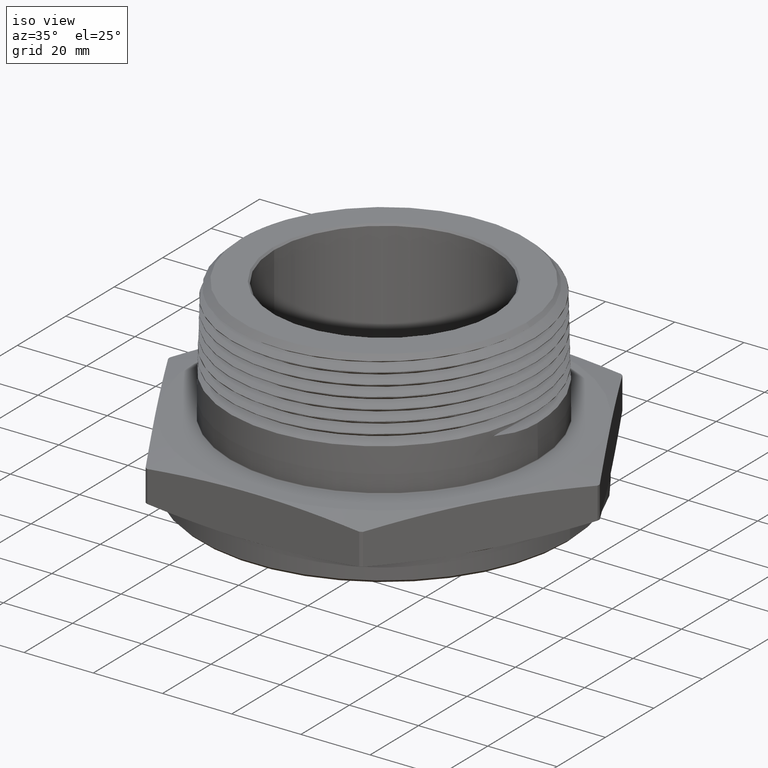
[diagram: clean part render]
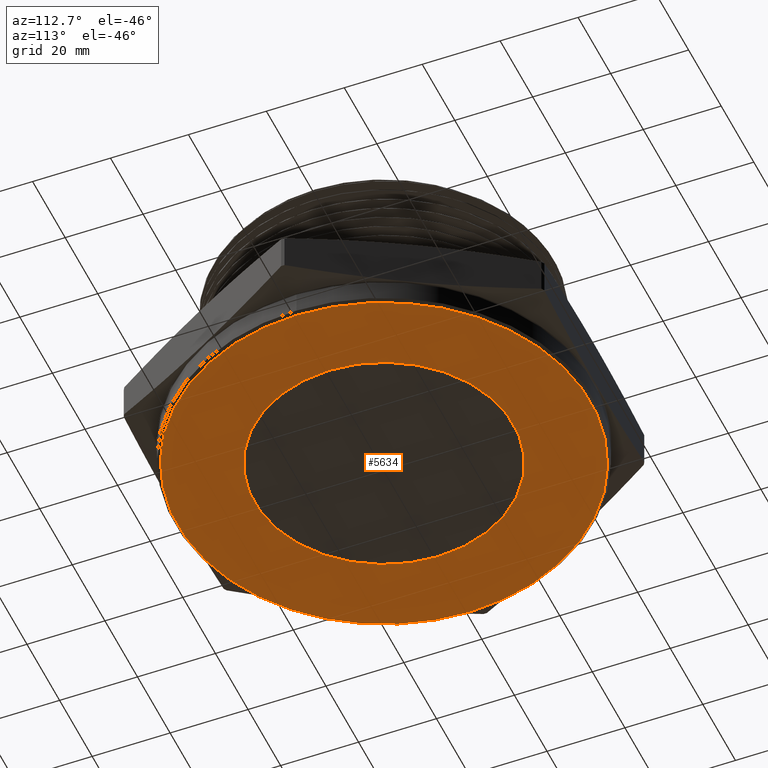
[diagram: tour spotlight — one face highlighted and labeled with its STEP entity id]
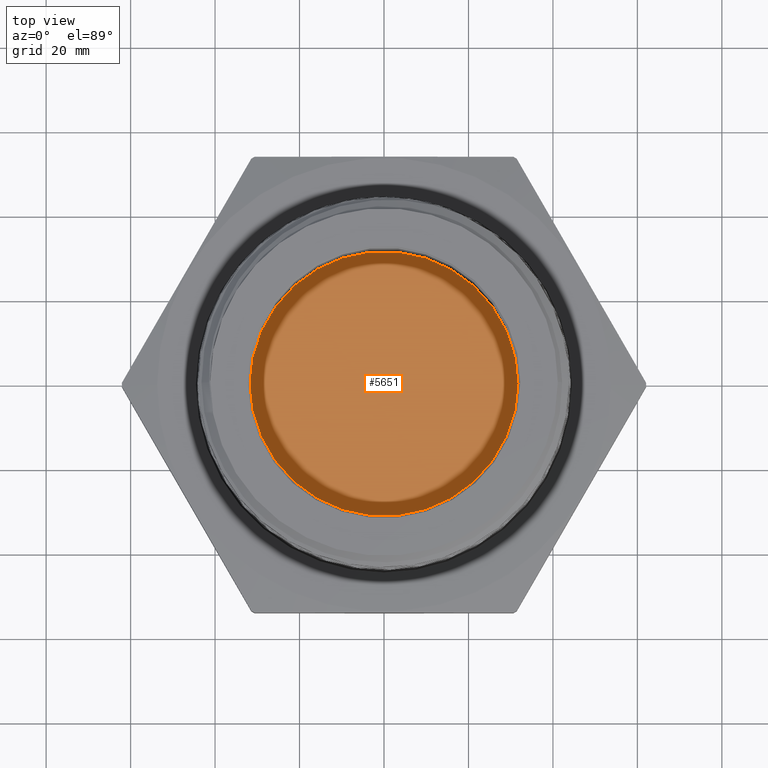
[diagram: tour spotlight — one face highlighted and labeled with its STEP entity id]
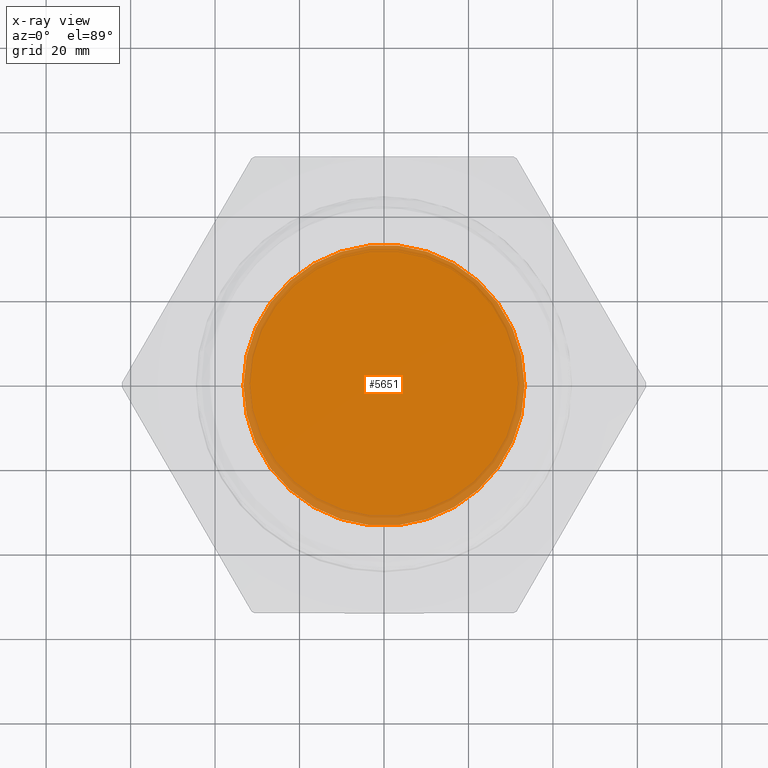
[diagram: x-ray of the same camera — body ghosted, this tour face saturated]
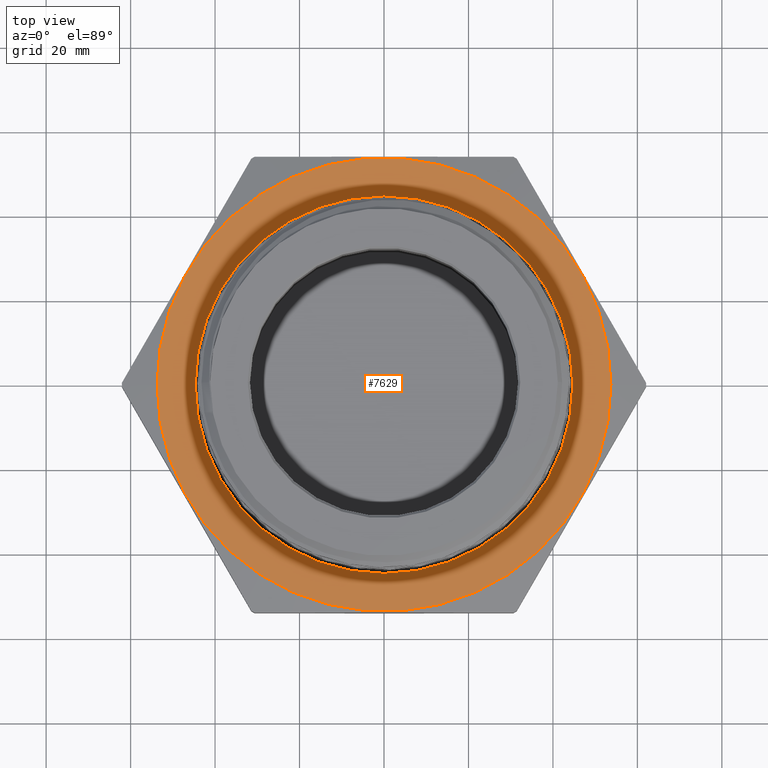
[diagram: tour spotlight — one face highlighted and labeled with its STEP entity id]
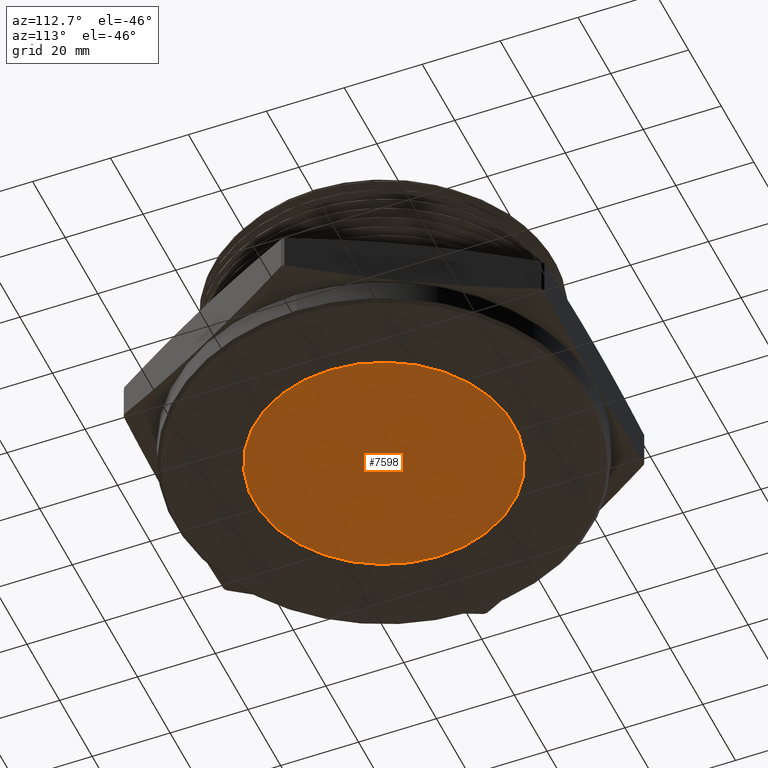
[diagram: tour spotlight — one face highlighted and labeled with its STEP entity id]
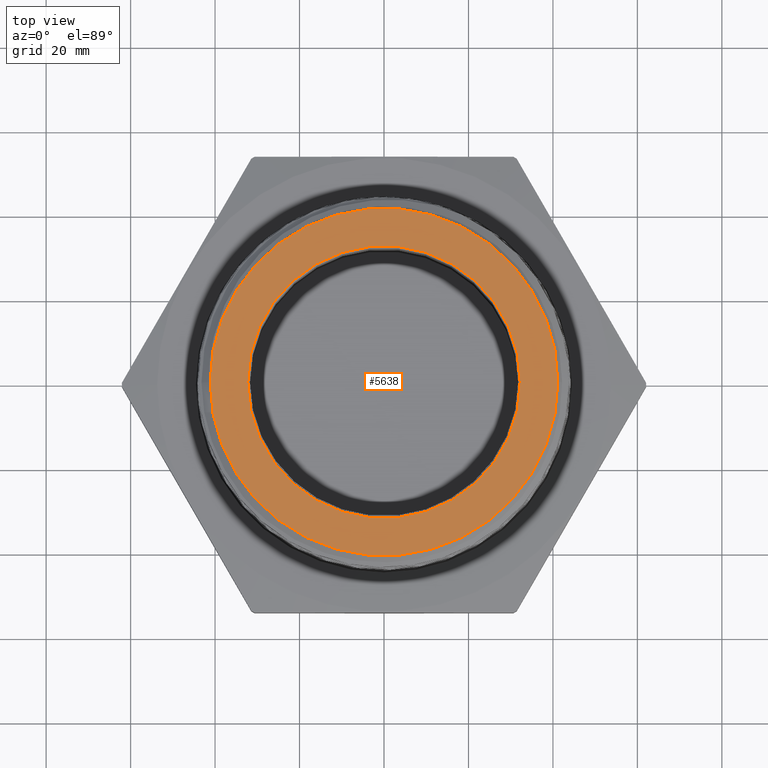
[diagram: tour spotlight — one face highlighted and labeled with its STEP entity id]
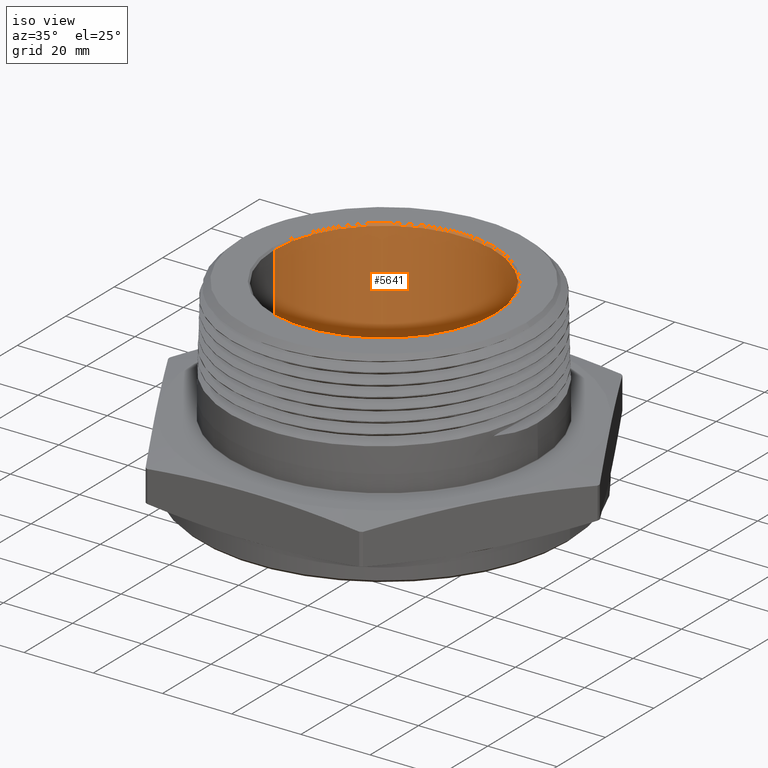
[diagram: tour spotlight — one face highlighted and labeled with its STEP entity id]
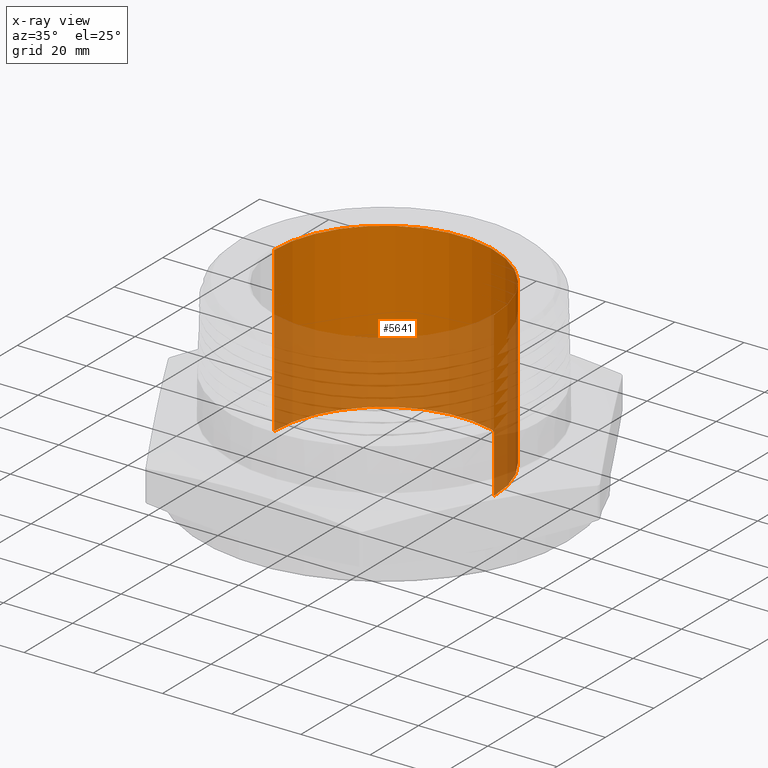
[diagram: x-ray of the same camera — body ghosted, this tour face saturated]
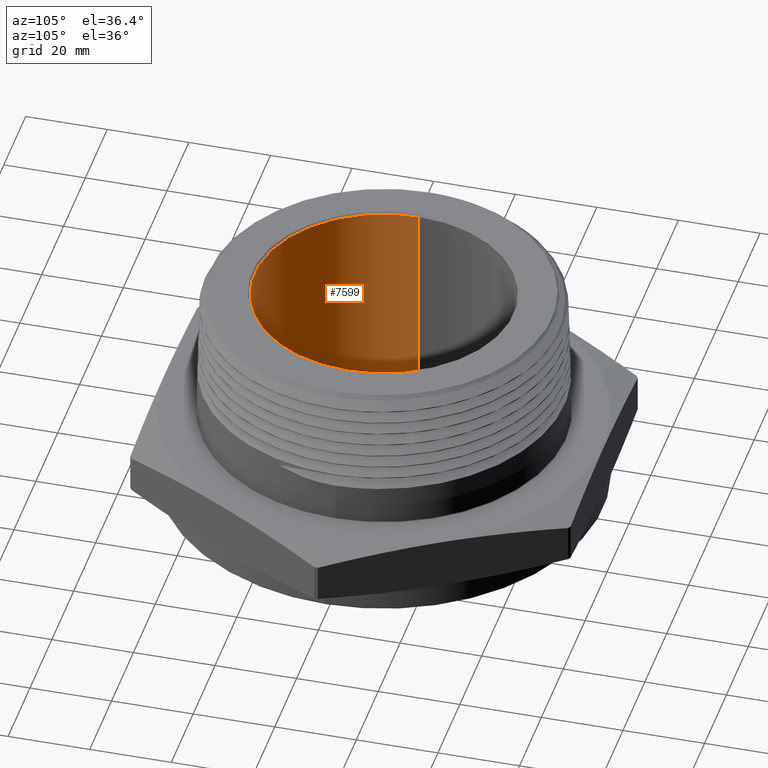
[diagram: tour spotlight — one face highlighted and labeled with its STEP entity id]
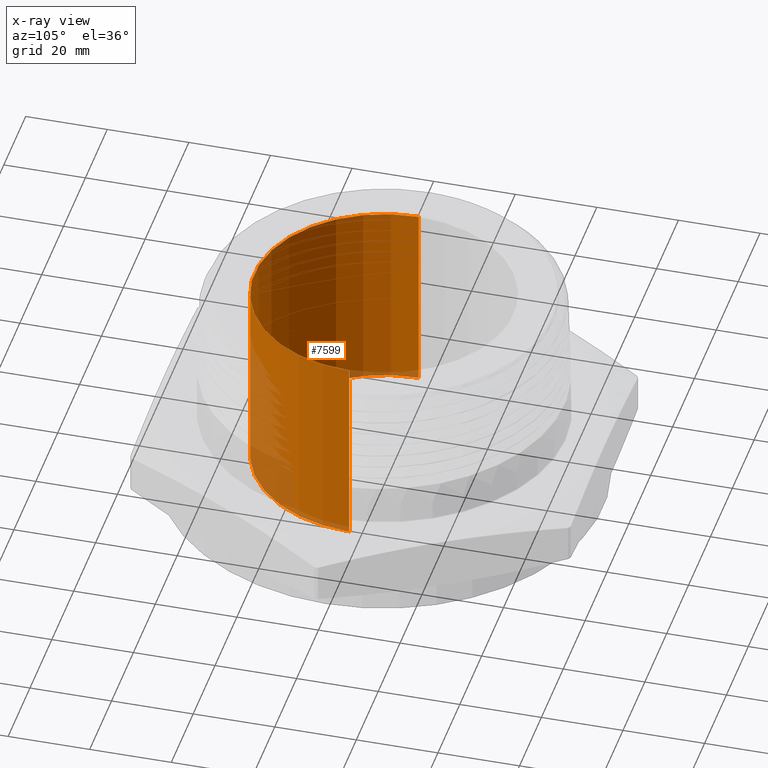
[diagram: x-ray of the same camera — body ghosted, this tour face saturated]
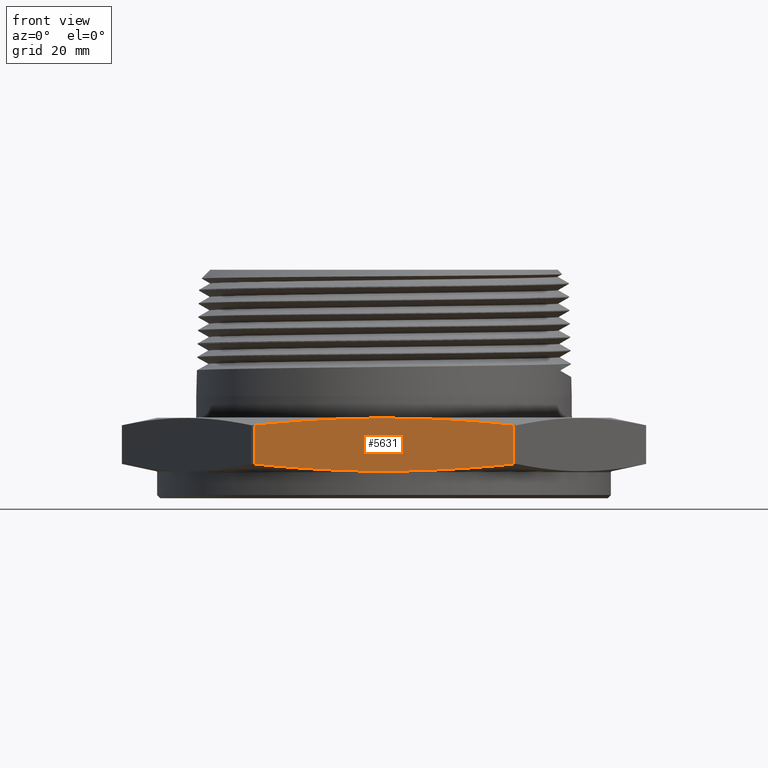
[diagram: tour spotlight — one face highlighted and labeled with its STEP entity id]
A machine part: a face-by-face anatomy tour. The part has 65 B-rep faces; the first image is the clean iso view, then the 8 largest visible faces are spotlighted one at a time (largest first), each with its STEP entity span.

Face 1 — auxiliary view, entity #5634. In plain terms, the highlighted planar face has unit normal (0, 0, -1).
Definition (entity closure, byte-faithful):
#511 = CARTESIAN_POINT ( 'NONE',  ( 4.898587196589325700E-018, 0.0000000000000000000, -0.2500000000000000000 ) ) ;
#512 = DIRECTION ( 'NONE',  ( 3.475283666183381100E-018, -0.0000000000000000000, -1.000000000000000000 ) ) ;
#513 = DIRECTION ( 'NONE',  ( -1.000000000000000000, 0.0000000000000000000, 0.0000000000000000000 ) ) ;
#514 = CARTESIAN_POINT ( 'NONE',  ( 0.0000000000000000000, 0.0000000000000000000, -0.2500000000000000000 ) ) ;
#515 = DIRECTION ( 'NONE',  ( 0.0000000000000000000, 0.0000000000000000000, -1.000000000000000000 ) ) ;
#516 = DIRECTION ( 'NONE',  ( -1.000000000000000000, 0.0000000000000000000, 0.0000000000000000000 ) ) ;
#623 = ORIENTED_EDGE ( 'NONE', *, *, #1341, .T. ) ;
#626 = ORIENTED_EDGE ( 'NONE', *, *, #1340, .F. ) ;
#637 = ORIENTED_EDGE ( 'NONE', *, *, #1385, .T. ) ;
#638 = ORIENTED_EDGE ( 'NONE', *, *, #1387, .F. ) ;
#1206 = CARTESIAN_POINT ( 'NONE',  ( 1.310000000000000100, 1.604287306883032600E-016, -0.2500000000000000000 ) ) ;
#1208 = CARTESIAN_POINT ( 'NONE',  ( -1.310000000000000100, 0.0000000000000000000, -0.2500000000000000000 ) ) ;
#1222 = CARTESIAN_POINT ( 'NONE',  ( -2.085000000000000900, 2.571758278209442400E-016, -0.2500000000000000000 ) ) ;
#1230 = CARTESIAN_POINT ( 'NONE',  ( 2.085000000000000900, 0.0000000000000000000, -0.2500000000000000000 ) ) ;
#1340 = EDGE_CURVE ( 'NONE', #7772, #7770, #7377, .T. ) ;
#1341 = EDGE_CURVE ( 'NONE', #7794, #7786, #7374, .T. ) ;
#1385 = EDGE_CURVE ( 'NONE', #7786, #7794, #7428, .T. ) ;
#1387 = EDGE_CURVE ( 'NONE', #7770, #7772, #7434, .T. ) ;
#1494 = AXIS2_PLACEMENT_3D ( 'NONE', #511, #512, #513 ) ;
#1495 = AXIS2_PLACEMENT_3D ( 'NONE', #514, #515, #516 ) ;
#1520 = AXIS2_PLACEMENT_3D ( 'NONE', #4742, #4743, #4744 ) ;
#1521 = AXIS2_PLACEMENT_3D ( 'NONE', #4748, #4749, #4750 ) ;
#1550 = AXIS2_PLACEMENT_3D ( 'NONE', #4910, #4909, #4914 ) ;
#4742 = CARTESIAN_POINT ( 'NONE',  ( 0.0000000000000000000, 0.0000000000000000000, -0.2500000000000000000 ) ) ;
#4743 = DIRECTION ( 'NONE',  ( 0.0000000000000000000, 0.0000000000000000000, -1.000000000000000000 ) ) ;
#4744 = DIRECTION ( 'NONE',  ( -1.000000000000000000, 0.0000000000000000000, 0.0000000000000000000 ) ) ;
#4748 = CARTESIAN_POINT ( 'NONE',  ( 4.898587196589325700E-018, 0.0000000000000000000, -0.2500000000000000000 ) ) ;
#4749 = DIRECTION ( 'NONE',  ( 3.475283666183381100E-018, -0.0000000000000000000, -1.000000000000000000 ) ) ;
#4750 = DIRECTION ( 'NONE',  ( -1.000000000000000000, 0.0000000000000000000, 0.0000000000000000000 ) ) ;
#4909 = DIRECTION ( 'NONE',  ( 0.0000000000000000000, 0.0000000000000000000, -1.000000000000000000 ) ) ;
#4910 = CARTESIAN_POINT ( 'NONE',  ( 0.0000000000000000000, 0.0000000000000000000, -0.2500000000000000000 ) ) ;
#4912 = PLANE ( 'NONE',  #1550 ) ;
#4914 = DIRECTION ( 'NONE',  ( -1.000000000000000000, 0.0000000000000000000, -0.0000000000000000000 ) ) ;
#5634 = ADVANCED_FACE ( 'NONE', ( #7486, #7494 ), #4912, .T. ) ;
#7374 = CIRCLE ( 'NONE', #1495, 2.085000000000000900 ) ;
#7377 = CIRCLE ( 'NONE', #1494, 1.310000000000000100 ) ;
#7428 = CIRCLE ( 'NONE', #1520, 2.085000000000000900 ) ;
#7434 = CIRCLE ( 'NONE', #1521, 1.310000000000000100 ) ;
#7486 = FACE_BOUND ( 'NONE', #7868, .T. ) ;
#7494 = FACE_OUTER_BOUND ( 'NONE', #7855, .T. ) ;
#7770 = VERTEX_POINT ( 'NONE', #1206 ) ;
#7772 = VERTEX_POINT ( 'NONE', #1208 ) ;
#7786 = VERTEX_POINT ( 'NONE', #1222 ) ;
#7794 = VERTEX_POINT ( 'NONE', #1230 ) ;
#7855 = EDGE_LOOP ( 'NONE', ( #623, #637 ) ) ;
#7868 = EDGE_LOOP ( 'NONE', ( #626, #638 ) ) ;

Face 2 — top view, entity #5651. An x-ray twin of the same camera follows (body ghosted, this face saturated) — the face is partly hidden behind the body. In plain terms, the highlighted planar face has unit normal (0, 0, -1).
Definition (entity closure, byte-faithful):
#1040 = CARTESIAN_POINT ( 'NONE',  ( 4.042901210435354600E-018, 0.0000000000000000000, -0.003779527559055103000 ) ) ;
#1042 = PLANE ( 'NONE',  #1563 ) ;
#1044 = DIRECTION ( 'NONE',  ( 3.475283666183381100E-018, 0.0000000000000000000, -1.000000000000000000 ) ) ;
#1045 = DIRECTION ( 'NONE',  ( -1.000000000000000000, 0.0000000000000000000, -3.475283666183381100E-018 ) ) ;
#1160 = CARTESIAN_POINT ( 'NONE',  ( 1.310000000000000100, 0.0000000000000000000, -0.003779527559055098200 ) ) ;
#1187 = CARTESIAN_POINT ( 'NONE',  ( -1.310000000000000100, 1.604287306883032400E-016, -0.003779527559055107700 ) ) ;
#1355 = EDGE_CURVE ( 'NONE', #7692, #7693, #7393, .T. ) ;
#1358 = EDGE_CURVE ( 'NONE', #7693, #7692, #7399, .T. ) ;
#1501 = AXIS2_PLACEMENT_3D ( 'NONE', #4597, #4598, #4599 ) ;
#1503 = AXIS2_PLACEMENT_3D ( 'NONE', #4606, #4607, #4608 ) ;
#1563 = AXIS2_PLACEMENT_3D ( 'NONE', #1040, #1044, #1045 ) ;
#4597 = CARTESIAN_POINT ( 'NONE',  ( 4.042901210435354600E-018, 0.0000000000000000000, -0.003779527559055103000 ) ) ;
#4598 = DIRECTION ( 'NONE',  ( 3.475283666183381100E-018, 0.0000000000000000000, -1.000000000000000000 ) ) ;
#4599 = DIRECTION ( 'NONE',  ( -1.000000000000000000, 0.0000000000000000000, -3.665707291116765800E-018 ) ) ;
#4606 = CARTESIAN_POINT ( 'NONE',  ( 4.042901210435354600E-018, 0.0000000000000000000, -0.003779527559055103000 ) ) ;
#4607 = DIRECTION ( 'NONE',  ( 3.475283666183381100E-018, 0.0000000000000000000, -1.000000000000000000 ) ) ;
#4608 = DIRECTION ( 'NONE',  ( -1.000000000000000000, 0.0000000000000000000, -3.665707291116765800E-018 ) ) ;
#5651 = ADVANCED_FACE ( 'NONE', ( #7518 ), #1042, .F. ) ;
#7393 = CIRCLE ( 'NONE', #1501, 1.310000000000000100 ) ;
#7399 = CIRCLE ( 'NONE', #1503, 1.310000000000000100 ) ;
#7518 = FACE_OUTER_BOUND ( 'NONE', #7866, .T. ) ;
#7659 = ORIENTED_EDGE ( 'NONE', *, *, #1358, .F. ) ;
#7660 = ORIENTED_EDGE ( 'NONE', *, *, #1355, .F. ) ;
#7692 = VERTEX_POINT ( 'NONE', #1187 ) ;
#7693 = VERTEX_POINT ( 'NONE', #1160 ) ;
#7866 = EDGE_LOOP ( 'NONE', ( #7659, #7660 ) ) ;

Face 3 — top view, entity #7629. In plain terms, the highlighted planar face has unit normal (-0, 0, 1).
Definition (entity closure, byte-faithful):
#405 = CARTESIAN_POINT ( 'NONE',  ( 6.274932739761918600E-017, 0.0000000000000000000, 0.4999999999999997200 ) ) ;
#406 = DIRECTION ( 'NONE',  ( -1.254986547952384500E-016, -0.0000000000000000000, -1.000000000000000000 ) ) ;
#407 = DIRECTION ( 'NONE',  ( -1.000000000000000000, 0.0000000000000000000, 1.291653897713599600E-016 ) ) ;
#408 = CARTESIAN_POINT ( 'NONE',  ( 0.0000000000000000000, 0.0000000000000000000, 0.5000000000000000000 ) ) ;
#409 = DIRECTION ( 'NONE',  ( 0.0000000000000000000, -0.0000000000000000000, -1.000000000000000000 ) ) ;
#410 = DIRECTION ( 'NONE',  ( 1.000000000000000000, 0.0000000000000000000, 0.0000000000000000000 ) ) ;
#1148 = DIRECTION ( 'NONE',  ( -0.0000000000000000000, 0.0000000000000000000, 1.000000000000000000 ) ) ;
#1149 = CARTESIAN_POINT ( 'NONE',  ( -1.226869322027953600, -2.124999999999999100, 0.5000000000000000000 ) ) ;
#1151 = PLANE ( 'NONE',  #1595 ) ;
#1153 = DIRECTION ( 'NONE',  ( 1.000000000000000000, 0.0000000000000000000, 0.0000000000000000000 ) ) ;
#1157 = CARTESIAN_POINT ( 'NONE',  ( -2.115000000000000200, 0.0000000000000000000, 0.5000000000000000000 ) ) ;
#1198 = CARTESIAN_POINT ( 'NONE',  ( -1.759999999999999800, 2.155378366499341300E-016, 0.5000000000000000000 ) ) ;
#1215 = CARTESIAN_POINT ( 'NONE',  ( 2.115000000000000200, 2.590127980196652600E-016, 0.4999999999999994400 ) ) ;
#1234 = CARTESIAN_POINT ( 'NONE',  ( 1.759999999999999800, 0.0000000000000000000, 0.5000000000000000000 ) ) ;
#1314 = EDGE_CURVE ( 'NONE', #7779, #7756, #7345, .T. ) ;
#1315 = EDGE_CURVE ( 'NONE', #7760, #7798, #7343, .T. ) ;
#1379 = EDGE_CURVE ( 'NONE', #7798, #7760, #7422, .T. ) ;
#1402 = EDGE_CURVE ( 'NONE', #7756, #7779, #7449, .T. ) ;
#1415 = ORIENTED_EDGE ( 'NONE', *, *, #1379, .T. ) ;
#1422 = ORIENTED_EDGE ( 'NONE', *, *, #1315, .T. ) ;
#1463 = ORIENTED_EDGE ( 'NONE', *, *, #1314, .F. ) ;
#1464 = ORIENTED_EDGE ( 'NONE', *, *, #1402, .F. ) ;
#1485 = AXIS2_PLACEMENT_3D ( 'NONE', #405, #406, #407 ) ;
#1486 = AXIS2_PLACEMENT_3D ( 'NONE', #408, #409, #410 ) ;
#1516 = AXIS2_PLACEMENT_3D ( 'NONE', #4724, #4725, #4726 ) ;
#1528 = AXIS2_PLACEMENT_3D ( 'NONE', #4799, #4800, #4801 ) ;
#1595 = AXIS2_PLACEMENT_3D ( 'NONE', #1149, #1148, #1153 ) ;
#4724 = CARTESIAN_POINT ( 'NONE',  ( 0.0000000000000000000, 0.0000000000000000000, 0.5000000000000000000 ) ) ;
#4725 = DIRECTION ( 'NONE',  ( 0.0000000000000000000, -0.0000000000000000000, -1.000000000000000000 ) ) ;
#4726 = DIRECTION ( 'NONE',  ( 1.000000000000000000, 0.0000000000000000000, 0.0000000000000000000 ) ) ;
#4799 = CARTESIAN_POINT ( 'NONE',  ( 6.274932739761918600E-017, 0.0000000000000000000, 0.4999999999999997200 ) ) ;
#4800 = DIRECTION ( 'NONE',  ( -1.254986547952384500E-016, -0.0000000000000000000, -1.000000000000000000 ) ) ;
#4801 = DIRECTION ( 'NONE',  ( -1.000000000000000000, 0.0000000000000000000, 1.291653897713599600E-016 ) ) ;
#7343 = CIRCLE ( 'NONE', #1486, 1.759999999999999800 ) ;
#7345 = CIRCLE ( 'NONE', #1485, 2.115000000000000200 ) ;
#7422 = CIRCLE ( 'NONE', #1516, 1.759999999999999800 ) ;
#7449 = CIRCLE ( 'NONE', #1528, 2.115000000000000200 ) ;
#7580 = FACE_OUTER_BOUND ( 'NONE', #7885, .T. ) ;
#7582 = FACE_BOUND ( 'NONE', #7880, .T. ) ;
#7629 = ADVANCED_FACE ( 'NONE', ( #7580, #7582 ), #1151, .T. ) ;
#7756 = VERTEX_POINT ( 'NONE', #1157 ) ;
#7760 = VERTEX_POINT ( 'NONE', #1198 ) ;
#7779 = VERTEX_POINT ( 'NONE', #1215 ) ;
#7798 = VERTEX_POINT ( 'NONE', #1234 ) ;
#7880 = EDGE_LOOP ( 'NONE', ( #1415, #1422 ) ) ;
#7885 = EDGE_LOOP ( 'NONE', ( #1464, #1463 ) ) ;

Face 4 — auxiliary view, entity #7598. In plain terms, the highlighted planar face has unit normal (0, 0, -1).
Definition (entity closure, byte-faithful):
#1041 = CARTESIAN_POINT ( 'NONE',  ( 0.0000000000000000000, 0.0000000000000000000, -0.2500000000000000000 ) ) ;
#1046 = PLANE ( 'NONE',  #1565 ) ;
#1058 = DIRECTION ( 'NONE',  ( 0.0000000000000000000, 0.0000000000000000000, -1.000000000000000000 ) ) ;
#1059 = DIRECTION ( 'NONE',  ( -1.000000000000000000, 0.0000000000000000000, -0.0000000000000000000 ) ) ;
#1159 = CARTESIAN_POINT ( 'NONE',  ( 1.310000000000000100, 0.0000000000000000000, -0.2499999999999998100 ) ) ;
#1184 = CARTESIAN_POINT ( 'NONE',  ( -1.310000000000000100, 1.604287306883032400E-016, -0.2499999999999998100 ) ) ;
#1354 = EDGE_CURVE ( 'NONE', #7688, #7690, #7386, .T. ) ;
#1357 = EDGE_CURVE ( 'NONE', #7690, #7688, #7395, .T. ) ;
#1500 = AXIS2_PLACEMENT_3D ( 'NONE', #4594, #4595, #4596 ) ;
#1502 = AXIS2_PLACEMENT_3D ( 'NONE', #4601, #4602, #4603 ) ;
#1565 = AXIS2_PLACEMENT_3D ( 'NONE', #1041, #1058, #1059 ) ;
#4594 = CARTESIAN_POINT ( 'NONE',  ( 4.898587196589324200E-018, 0.0000000000000000000, -0.2499999999999998100 ) ) ;
#4595 = DIRECTION ( 'NONE',  ( 0.0000000000000000000, 0.0000000000000000000, -1.000000000000000000 ) ) ;
#4596 = DIRECTION ( 'NONE',  ( -1.000000000000000000, 0.0000000000000000000, 0.0000000000000000000 ) ) ;
#4601 = CARTESIAN_POINT ( 'NONE',  ( 4.898587196589324200E-018, 0.0000000000000000000, -0.2499999999999998100 ) ) ;
#4602 = DIRECTION ( 'NONE',  ( 0.0000000000000000000, 0.0000000000000000000, -1.000000000000000000 ) ) ;
#4603 = DIRECTION ( 'NONE',  ( -1.000000000000000000, 0.0000000000000000000, 0.0000000000000000000 ) ) ;
#7386 = CIRCLE ( 'NONE', #1500, 1.310000000000000100 ) ;
#7395 = CIRCLE ( 'NONE', #1502, 1.310000000000000100 ) ;
#7521 = FACE_OUTER_BOUND ( 'NONE', #7865, .T. ) ;
#7598 = ADVANCED_FACE ( 'NONE', ( #7521 ), #1046, .T. ) ;
#7661 = ORIENTED_EDGE ( 'NONE', *, *, #1357, .T. ) ;
#7662 = ORIENTED_EDGE ( 'NONE', *, *, #1354, .T. ) ;
#7688 = VERTEX_POINT ( 'NONE', #1184 ) ;
#7690 = VERTEX_POINT ( 'NONE', #1159 ) ;
#7865 = EDGE_LOOP ( 'NONE', ( #7661, #7662 ) ) ;

Face 5 — top view, entity #5638. In plain terms, the highlighted planar face has unit normal (0, 0, 1).
Definition (entity closure, byte-faithful):
#517 = CARTESIAN_POINT ( 'NONE',  ( -2.503767012381274800E-018, 0.0000000000000000000, 1.879999999999999700 ) ) ;
#518 = DIRECTION ( 'NONE',  ( 3.475283666183381100E-018, -0.0000000000000000000, -1.000000000000000000 ) ) ;
#519 = DIRECTION ( 'NONE',  ( -1.000000000000000000, 0.0000000000000000000, 0.0000000000000000000 ) ) ;
#646 = ORIENTED_EDGE ( 'NONE', *, *, #1360, .T. ) ;
#647 = ORIENTED_EDGE ( 'NONE', *, *, #1259, .T. ) ;
#648 = ORIENTED_EDGE ( 'NONE', *, *, #1342, .T. ) ;
#649 = ORIENTED_EDGE ( 'NONE', *, *, #1394, .T. ) ;
#1048 = CARTESIAN_POINT ( 'NONE',  ( -1.620310000000000400, 0.0000000000000000000, 1.879999999999999700 ) ) ;
#1205 = CARTESIAN_POINT ( 'NONE',  ( 1.620310000000000400, 2.034208883318936100E-016, 1.879999999999999700 ) ) ;
#1220 = CARTESIAN_POINT ( 'NONE',  ( 1.269999999999999600, 0.0000000000000000000, 1.879999999999999700 ) ) ;
#1223 = CARTESIAN_POINT ( 'NONE',  ( -1.269999999999999600, 1.555301434917138100E-016, 1.879999999999999700 ) ) ;
#1259 = EDGE_CURVE ( 'NONE', #6338, #7769, #7307, .T. ) ;
#1342 = EDGE_CURVE ( 'NONE', #7787, #7784, #7368, .T. ) ;
#1360 = EDGE_CURVE ( 'NONE', #7769, #6338, #7401, .T. ) ;
#1394 = EDGE_CURVE ( 'NONE', #7784, #7787, #7445, .T. ) ;
#1482 = AXIS2_PLACEMENT_3D ( 'NONE', #7954, #7953, #7952 ) ;
#1496 = AXIS2_PLACEMENT_3D ( 'NONE', #517, #518, #519 ) ;
#1504 = AXIS2_PLACEMENT_3D ( 'NONE', #4668, #4669, #4670 ) ;
#1524 = AXIS2_PLACEMENT_3D ( 'NONE', #4763, #4764, #4765 ) ;
#1553 = AXIS2_PLACEMENT_3D ( 'NONE', #4923, #4922, #4927 ) ;
#4668 = CARTESIAN_POINT ( 'NONE',  ( 0.0000000000000000000, 0.0000000000000000000, 1.879999999999999700 ) ) ;
#4669 = DIRECTION ( 'NONE',  ( -0.0000000000000000000, -0.0000000000000000000, 1.000000000000000000 ) ) ;
#4670 = DIRECTION ( 'NONE',  ( 1.000000000000000000, 0.0000000000000000000, 0.0000000000000000000 ) ) ;
#4763 = CARTESIAN_POINT ( 'NONE',  ( -2.503767012381274800E-018, 0.0000000000000000000, 1.879999999999999700 ) ) ;
#4764 = DIRECTION ( 'NONE',  ( 3.475283666183381100E-018, -0.0000000000000000000, -1.000000000000000000 ) ) ;
#4765 = DIRECTION ( 'NONE',  ( -1.000000000000000000, 0.0000000000000000000, 0.0000000000000000000 ) ) ;
#4922 = DIRECTION ( 'NONE',  ( 0.0000000000000000000, 0.0000000000000000000, 1.000000000000000000 ) ) ;
#4923 = CARTESIAN_POINT ( 'NONE',  ( 0.0000000000000000000, 0.0000000000000000000, 1.879999999999999700 ) ) ;
#4925 = PLANE ( 'NONE',  #1553 ) ;
#4927 = DIRECTION ( 'NONE',  ( 1.000000000000000000, 0.0000000000000000000, -0.0000000000000000000 ) ) ;
#5638 = ADVANCED_FACE ( 'NONE', ( #7471, #7492 ), #4925, .T. ) ;
#6338 = VERTEX_POINT ( 'NONE', #1048 ) ;
#7307 = CIRCLE ( 'NONE', #1482, 1.620310000000000400 ) ;
#7368 = CIRCLE ( 'NONE', #1496, 1.269999999999999600 ) ;
#7401 = CIRCLE ( 'NONE', #1504, 1.620310000000000400 ) ;
#7445 = CIRCLE ( 'NONE', #1524, 1.269999999999999600 ) ;
#7471 = FACE_BOUND ( 'NONE', #7854, .T. ) ;
#7492 = FACE_OUTER_BOUND ( 'NONE', #7852, .T. ) ;
#7769 = VERTEX_POINT ( 'NONE', #1205 ) ;
#7784 = VERTEX_POINT ( 'NONE', #1220 ) ;
#7787 = VERTEX_POINT ( 'NONE', #1223 ) ;
#7852 = EDGE_LOOP ( 'NONE', ( #647, #646 ) ) ;
#7854 = EDGE_LOOP ( 'NONE', ( #649, #648 ) ) ;
#7952 = DIRECTION ( 'NONE',  ( 1.000000000000000000, 0.0000000000000000000, 0.0000000000000000000 ) ) ;
#7953 = DIRECTION ( 'NONE',  ( -0.0000000000000000000, -0.0000000000000000000, 1.000000000000000000 ) ) ;
#7954 = CARTESIAN_POINT ( 'NONE',  ( 0.0000000000000000000, 0.0000000000000000000, 1.879999999999999700 ) ) ;

Face 6 — iso view, entity #5641. An x-ray twin of the same camera follows (body ghosted, this face saturated) — the face is partly hidden behind the body. In plain terms, the highlighted cylindrical surface (partial cylindrical patch) has radius 31.75 mm, axis along (0, -0, -1).
Definition (entity closure, byte-faithful):
#523 = CARTESIAN_POINT ( 'NONE',  ( 4.042901210435354600E-018, 0.0000000000000000000, -0.003779527559055107700 ) ) ;
#524 = DIRECTION ( 'NONE',  ( 3.475283666183381100E-018, -0.0000000000000000000, -1.000000000000000000 ) ) ;
#525 = DIRECTION ( 'NONE',  ( -1.000000000000000000, 0.0000000000000000000, -3.414809992080329000E-018 ) ) ;
#528 = CARTESIAN_POINT ( 'NONE',  ( -2.434261339057606700E-018, 0.0000000000000000000, 1.859999999999999700 ) ) ;
#529 = DIRECTION ( 'NONE',  ( 3.475283666183381100E-018, -0.0000000000000000000, -1.000000000000000000 ) ) ;
#530 = DIRECTION ( 'NONE',  ( -1.000000000000000000, 0.0000000000000000000, 0.0000000000000000000 ) ) ;
#1218 = CARTESIAN_POINT ( 'NONE',  ( -1.250000000000000000, 0.0000000000000000000, -0.003779527559055112100 ) ) ;
#1219 = CARTESIAN_POINT ( 'NONE',  ( -1.249999999999999800, 0.0000000000000000000, 1.859999999999999700 ) ) ;
#1225 = CARTESIAN_POINT ( 'NONE',  ( 1.249999999999999800, 1.530808498934191100E-016, 1.859999999999999700 ) ) ;
#1232 = CARTESIAN_POINT ( 'NONE',  ( 1.250000000000000000, 1.530808498934191600E-016, -0.003779527559055103400 ) ) ;
#1344 = EDGE_CURVE ( 'NONE', #7782, #7796, #7379, .T. ) ;
#1345 = EDGE_CURVE ( 'NONE', #7783, #7789, #7380, .T. ) ;
#1390 = EDGE_CURVE ( 'NONE', #7783, #7782, #7439, .T. ) ;
#1392 = EDGE_CURVE ( 'NONE', #7789, #7796, #7436, .T. ) ;
#1498 = AXIS2_PLACEMENT_3D ( 'NONE', #523, #524, #525 ) ;
#1499 = AXIS2_PLACEMENT_3D ( 'NONE', #528, #529, #530 ) ;
#1557 = AXIS2_PLACEMENT_3D ( 'NONE', #4935, #4931, #4933 ) ;
#4745 = DIRECTION ( 'NONE',  ( 3.475283666183381100E-018, -0.0000000000000000000, -1.000000000000000000 ) ) ;
#4746 = CARTESIAN_POINT ( 'NONE',  ( -1.250000000000000000, 0.0000000000000000000, -0.2500000000000000000 ) ) ;
#4751 = DIRECTION ( 'NONE',  ( 3.475283666183381100E-018, -0.0000000000000000000, -1.000000000000000000 ) ) ;
#4756 = CARTESIAN_POINT ( 'NONE',  ( 1.250000000000000000, 1.530808498934191600E-016, -0.2500000000000000000 ) ) ;
#4931 = DIRECTION ( 'NONE',  ( 3.475283666183381100E-018, -0.0000000000000000000, -1.000000000000000000 ) ) ;
#4933 = DIRECTION ( 'NONE',  ( -1.000000000000000000, 0.0000000000000000000, 0.0000000000000000000 ) ) ;
#4935 = CARTESIAN_POINT ( 'NONE',  ( 4.898587196589325700E-018, 0.0000000000000000000, -0.2500000000000000000 ) ) ;
#5641 = ADVANCED_FACE ( 'NONE', ( #7500 ), #7509, .F. ) ;
#6328 = ORIENTED_EDGE ( 'NONE', *, *, #1344, .T. ) ;
#6329 = ORIENTED_EDGE ( 'NONE', *, *, #1390, .T. ) ;
#6330 = ORIENTED_EDGE ( 'NONE', *, *, #1345, .F. ) ;
#6331 = ORIENTED_EDGE ( 'NONE', *, *, #1392, .F. ) ;
#7379 = CIRCLE ( 'NONE', #1498, 1.250000000000000000 ) ;
#7380 = CIRCLE ( 'NONE', #1499, 1.249999999999999800 ) ;
#7436 = LINE ( 'NONE', #4756, #7444 ) ;
#7439 = LINE ( 'NONE', #4746, #7441 ) ;
#7441 = VECTOR ( 'NONE', #4745, 39.37007874015748100 ) ;
#7444 = VECTOR ( 'NONE', #4751, 39.37007874015748100 ) ;
#7500 = FACE_OUTER_BOUND ( 'NONE', #7851, .T. ) ;
#7509 = CYLINDRICAL_SURFACE ( 'NONE', #1557, 1.250000000000000000 ) ;
#7782 = VERTEX_POINT ( 'NONE', #1218 ) ;
#7783 = VERTEX_POINT ( 'NONE', #1219 ) ;
#7789 = VERTEX_POINT ( 'NONE', #1225 ) ;
#7796 = VERTEX_POINT ( 'NONE', #1232 ) ;
#7851 = EDGE_LOOP ( 'NONE', ( #6331, #6330, #6329, #6328 ) ) ;

Face 7 — auxiliary view, entity #7599. An x-ray twin of the same camera follows (body ghosted, this face saturated) — the face is partly hidden behind the body. In plain terms, the highlighted cylindrical surface (partial cylindrical patch) has radius 31.75 mm, axis along (0, -0, -1).
Definition (entity closure, byte-faithful):
#1056 = DIRECTION ( 'NONE',  ( -1.000000000000000000, 0.0000000000000000000, 0.0000000000000000000 ) ) ;
#1057 = DIRECTION ( 'NONE',  ( 3.475283666183381100E-018, -0.0000000000000000000, -1.000000000000000000 ) ) ;
#1060 = CARTESIAN_POINT ( 'NONE',  ( 4.898587196589325700E-018, 0.0000000000000000000, -0.2500000000000000000 ) ) ;
#1218 = CARTESIAN_POINT ( 'NONE',  ( -1.250000000000000000, 0.0000000000000000000, -0.003779527559055112100 ) ) ;
#1219 = CARTESIAN_POINT ( 'NONE',  ( -1.249999999999999800, 0.0000000000000000000, 1.859999999999999700 ) ) ;
#1225 = CARTESIAN_POINT ( 'NONE',  ( 1.249999999999999800, 1.530808498934191100E-016, 1.859999999999999700 ) ) ;
#1232 = CARTESIAN_POINT ( 'NONE',  ( 1.250000000000000000, 1.530808498934191600E-016, -0.003779527559055103400 ) ) ;
#1390 = EDGE_CURVE ( 'NONE', #7783, #7782, #7439, .T. ) ;
#1391 = EDGE_CURVE ( 'NONE', #7796, #7782, #7440, .T. ) ;
#1392 = EDGE_CURVE ( 'NONE', #7789, #7796, #7436, .T. ) ;
#1395 = EDGE_CURVE ( 'NONE', #7789, #7783, #7447, .T. ) ;
#1523 = AXIS2_PLACEMENT_3D ( 'NONE', #4757, #4758, #4759 ) ;
#1525 = AXIS2_PLACEMENT_3D ( 'NONE', #4768, #4769, #4770 ) ;
#1567 = AXIS2_PLACEMENT_3D ( 'NONE', #1060, #1057, #1056 ) ;
#4745 = DIRECTION ( 'NONE',  ( 3.475283666183381100E-018, -0.0000000000000000000, -1.000000000000000000 ) ) ;
#4746 = CARTESIAN_POINT ( 'NONE',  ( -1.250000000000000000, 0.0000000000000000000, -0.2500000000000000000 ) ) ;
#4751 = DIRECTION ( 'NONE',  ( 3.475283666183381100E-018, -0.0000000000000000000, -1.000000000000000000 ) ) ;
#4756 = CARTESIAN_POINT ( 'NONE',  ( 1.250000000000000000, 1.530808498934191600E-016, -0.2500000000000000000 ) ) ;
#4757 = CARTESIAN_POINT ( 'NONE',  ( 4.042901210435354600E-018, 0.0000000000000000000, -0.003779527559055107700 ) ) ;
#4758 = DIRECTION ( 'NONE',  ( 3.475283666183381100E-018, -0.0000000000000000000, -1.000000000000000000 ) ) ;
#4759 = DIRECTION ( 'NONE',  ( -1.000000000000000000, 0.0000000000000000000, -3.414809992080329000E-018 ) ) ;
#4768 = CARTESIAN_POINT ( 'NONE',  ( -2.434261339057606700E-018, 0.0000000000000000000, 1.859999999999999700 ) ) ;
#4769 = DIRECTION ( 'NONE',  ( 3.475283666183381100E-018, -0.0000000000000000000, -1.000000000000000000 ) ) ;
#4770 = DIRECTION ( 'NONE',  ( -1.000000000000000000, 0.0000000000000000000, 0.0000000000000000000 ) ) ;
#7436 = LINE ( 'NONE', #4756, #7444 ) ;
#7439 = LINE ( 'NONE', #4746, #7441 ) ;
#7440 = CIRCLE ( 'NONE', #1523, 1.250000000000000000 ) ;
#7441 = VECTOR ( 'NONE', #4745, 39.37007874015748100 ) ;
#7444 = VECTOR ( 'NONE', #4751, 39.37007874015748100 ) ;
#7447 = CIRCLE ( 'NONE', #1525, 1.249999999999999800 ) ;
#7510 = FACE_OUTER_BOUND ( 'NONE', #7912, .T. ) ;
#7524 = CYLINDRICAL_SURFACE ( 'NONE', #1567, 1.250000000000000000 ) ;
#7599 = ADVANCED_FACE ( 'NONE', ( #7510 ), #7524, .F. ) ;
#7782 = VERTEX_POINT ( 'NONE', #1218 ) ;
#7783 = VERTEX_POINT ( 'NONE', #1219 ) ;
#7789 = VERTEX_POINT ( 'NONE', #1225 ) ;
#7796 = VERTEX_POINT ( 'NONE', #1232 ) ;
#7813 = ORIENTED_EDGE ( 'NONE', *, *, #1391, .T. ) ;
#7814 = ORIENTED_EDGE ( 'NONE', *, *, #1392, .T. ) ;
#7815 = ORIENTED_EDGE ( 'NONE', *, *, #1395, .F. ) ;
#7912 = EDGE_LOOP ( 'NONE', ( #7815, #7814, #7813, #7915 ) ) ;
#7915 = ORIENTED_EDGE ( 'NONE', *, *, #1390, .F. ) ;

Face 8 — front view, entity #5631. In plain terms, the highlighted planar face has unit normal (-0, 1, 0).
Definition (entity closure, byte-faithful):
#372 = DIRECTION ( 'NONE',  ( -1.254986547952384500E-016, -0.0000000000000000000, -1.000000000000000000 ) ) ;
#411 = CARTESIAN_POINT ( 'NONE',  ( -1.206745027108963700, -2.124999999999999100, 1.514448775830185200E-016 ) ) ;
#427 = DIRECTION ( 'NONE',  ( 1.254986547952384500E-016, 0.0000000000000000000, 1.000000000000000000 ) ) ;
#428 = CARTESIAN_POINT ( 'NONE',  ( 1.206745027108964100, -2.124999999999999100, -1.514448775830185200E-016 ) ) ;
#452 = CARTESIAN_POINT ( 'NONE',  ( 1.006051997458356200, -2.124999999999998700, 0.4511897401589571300 ) ) ;
#454 = CARTESIAN_POINT ( 'NONE',  ( 0.8052698259763815300, -2.124999999999998700, 0.4682799360498072800 ) ) ;
#462 = CARTESIAN_POINT ( 'NONE',  ( 1.206745027108964100, -2.124999999999999100, 0.4301244441314128200 ) ) ;
#464 = CARTESIAN_POINT ( 'NONE',  ( 0.4034629197590918800, -2.124999999999999100, 0.4916437088914039600 ) ) ;
#465 = CARTESIAN_POINT ( 'NONE',  ( 0.2024366483840268100, -2.124999999999999600, 0.4978487624924684000 ) ) ;
#466 = CARTESIAN_POINT ( 'NONE',  ( -0.1998930439193720200, -2.124999999999999100, 0.4978999444830012300 ) ) ;
#467 = CARTESIAN_POINT ( 'NONE',  ( -0.4011965089461573800, -2.124999999999999600, 0.4917441063909271400 ) ) ;
#468 = CARTESIAN_POINT ( 'NONE',  ( -0.8040512475217900200, -2.125000000000000000, 0.4683819090897999900 ) ) ;
#469 = CARTESIAN_POINT ( 'NONE',  ( -1.005781014823315700, -2.124999999999999600, 0.4512181832465693200 ) ) ;
#470 = CARTESIAN_POINT ( 'NONE',  ( -1.206745027108963900, -2.124999999999999600, 0.4301244441314131000 ) ) ;
#480 = CARTESIAN_POINT ( 'NONE',  ( -1.005781014823315500, -2.124999999999999600, 0.04878181675343038600 ) ) ;
#482 = CARTESIAN_POINT ( 'NONE',  ( -0.8040512475217904700, -2.124999999999999100, 0.03161809091019952100 ) ) ;
#490 = CARTESIAN_POINT ( 'NONE',  ( -1.206745027108963700, -2.124999999999999100, 0.06987555586858679200 ) ) ;
#492 = CARTESIAN_POINT ( 'NONE',  ( -0.4011965089461582100, -2.125000000000000000, 0.008255893609072464600 ) ) ;
#493 = CARTESIAN_POINT ( 'NONE',  ( -0.1998930439193723200, -2.124999999999999100, 0.002100055516998447500 ) ) ;
#494 = CARTESIAN_POINT ( 'NONE',  ( 0.2024366483840259200, -2.124999999999998700, 0.002151237507531026600 ) ) ;
#495 = CARTESIAN_POINT ( 'NONE',  ( 0.4034629197590914900, -2.124999999999999100, 0.008356291108595355000 ) ) ;
#496 = CARTESIAN_POINT ( 'NONE',  ( 0.8052698259763809700, -2.124999999999999600, 0.03172006395019187600 ) ) ;
#497 = CARTESIAN_POINT ( 'NONE',  ( 1.006051997458355700, -2.124999999999999100, 0.04881025984104198800 ) ) ;
#498 = CARTESIAN_POINT ( 'NONE',  ( 1.206745027108964100, -2.124999999999999100, 0.06987555586858633400 ) ) ;
#1170 = CARTESIAN_POINT ( 'NONE',  ( -1.206745027108963700, -2.124999999999999100, 0.06987555586858679200 ) ) ;
#1177 = CARTESIAN_POINT ( 'NONE',  ( -1.206745027108963900, -2.124999999999999600, 0.4301244441314131000 ) ) ;
#1179 = CARTESIAN_POINT ( 'NONE',  ( 1.206745027108964100, -2.124999999999999100, 0.06987555586858633400 ) ) ;
#1183 = CARTESIAN_POINT ( 'NONE',  ( 1.206745027108964100, -2.124999999999999100, 0.4301244441314128200 ) ) ;
#1317 = EDGE_CURVE ( 'NONE', #7681, #7674, #7347, .T. ) ;
#1324 = EDGE_CURVE ( 'NONE', #7683, #7687, #7357, .T. ) ;
#1334 = EDGE_CURVE ( 'NONE', #7687, #7681, #7293, .T. ) ;
#1337 = EDGE_CURVE ( 'NONE', #7674, #7683, #7296, .T. ) ;
#1546 = AXIS2_PLACEMENT_3D ( 'NONE', #4897, #4902, #4903 ) ;
#1671 = ORIENTED_EDGE ( 'NONE', *, *, #1317, .T. ) ;
#1694 = ORIENTED_EDGE ( 'NONE', *, *, #1334, .T. ) ;
#1699 = ORIENTED_EDGE ( 'NONE', *, *, #1324, .T. ) ;
#1703 = ORIENTED_EDGE ( 'NONE', *, *, #1337, .T. ) ;
#4896 = PLANE ( 'NONE',  #1546 ) ;
#4897 = CARTESIAN_POINT ( 'NONE',  ( -1.226869322027954100, -2.124999999999999100, 0.5000000000000000000 ) ) ;
#4902 = DIRECTION ( 'NONE',  ( -1.113341064372143000E-016, 1.000000000000000000, 0.0000000000000000000 ) ) ;
#4903 = DIRECTION ( 'NONE',  ( -1.000000000000000000, -1.113341064372143000E-016, 0.0000000000000000000 ) ) ;
#5631 = ADVANCED_FACE ( 'NONE', ( #7488 ), #4896, .F. ) ;
#7293 = B_SPLINE_CURVE_WITH_KNOTS ( 'NONE', 3,
 ( #462, #452, #454, #464, #465, #466, #467, #468, #469, #470 ),
 .UNSPECIFIED., .F., .F.,
 ( 4, 2, 2, 2, 4 ),
 ( 0.1182957868938928500, 0.1336676053524287200, 0.1490394238109645800, 0.1644112422695004300, 0.1797830607280363200 ),
 .UNSPECIFIED. ) ;
#7296 = B_SPLINE_CURVE_WITH_KNOTS ( 'NONE', 3,
 ( #490, #480, #482, #492, #493, #494, #495, #496, #497, #498 ),
 .UNSPECIFIED., .F., .F.,
 ( 4, 2, 2, 2, 4 ),
 ( 0.05223951453195221900, 0.06762638530484750600, 0.08301325607774279200, 0.09840012685063809200, 0.1137869976235333800 ),
 .UNSPECIFIED. ) ;
#7347 = LINE ( 'NONE', #411, #7350 ) ;
#7350 = VECTOR ( 'NONE', #372, 39.37007874015748100 ) ;
#7357 = LINE ( 'NONE', #428, #7361 ) ;
#7361 = VECTOR ( 'NONE', #427, 39.37007874015748100 ) ;
#7488 = FACE_OUTER_BOUND ( 'NONE', #7860, .T. ) ;
#7674 = VERTEX_POINT ( 'NONE', #1170 ) ;
#7681 = VERTEX_POINT ( 'NONE', #1177 ) ;
#7683 = VERTEX_POINT ( 'NONE', #1179 ) ;
#7687 = VERTEX_POINT ( 'NONE', #1183 ) ;
#7860 = EDGE_LOOP ( 'NONE', ( #1703, #1699, #1694, #1671 ) ) ;